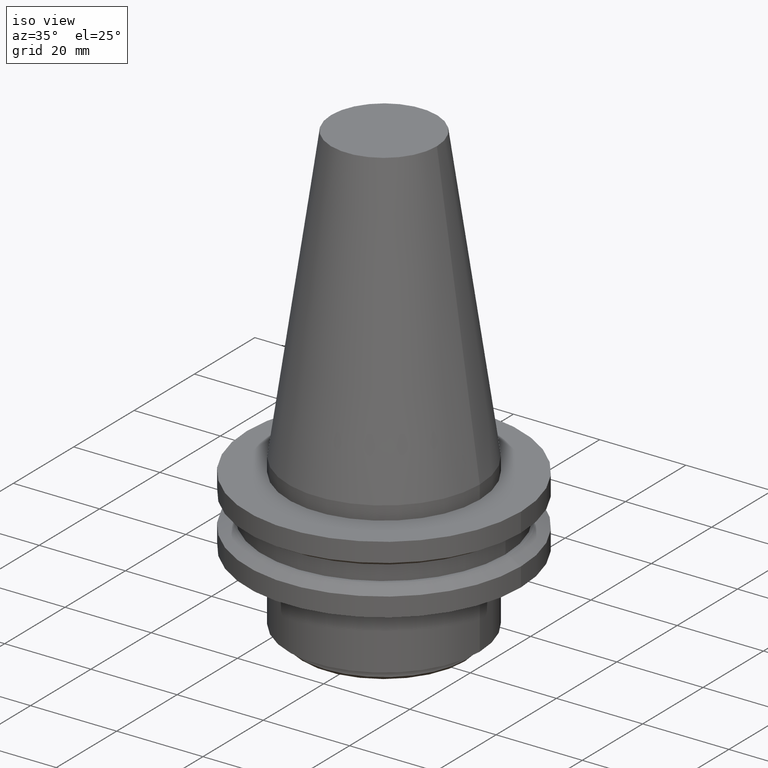
[diagram: clean part render]
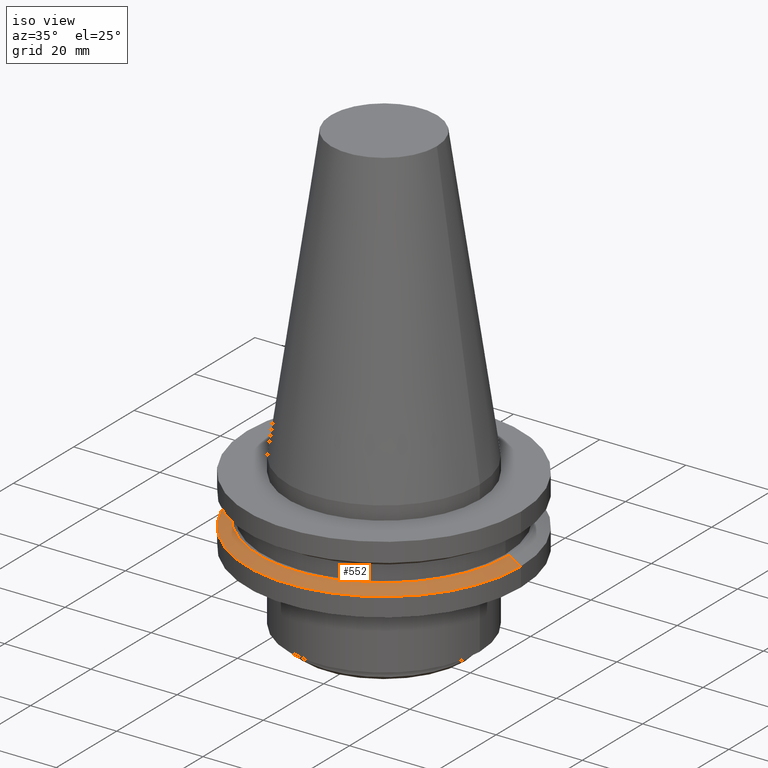
[diagram: same view with one face highlighted and labeled with its STEP entity id]
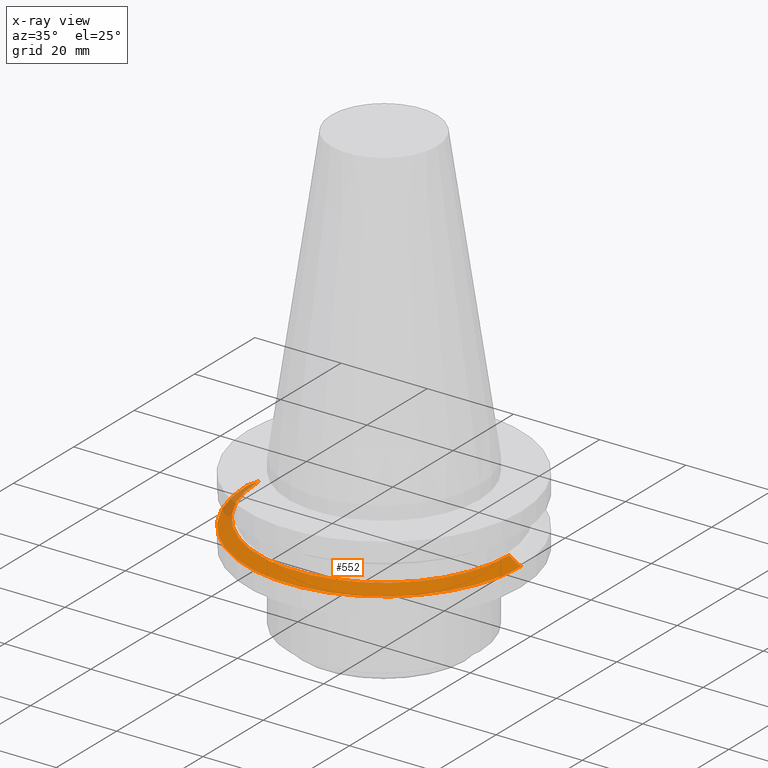
[diagram: x-ray of the same camera — body ghosted, the highlighted face saturated]
A machine part, iso view. The second image highlights one B-rep face of the part: STEP entity #552.
The next image is the same camera in x-ray: the body ghosted, the highlighted face saturated — about 5% of this face is hidden behind the body in this view.
In plain terms, the highlighted conical surface has half-angle 60 deg.
Its self-contained STEP definition (entity closure, byte-faithful):
#60 = CARTESIAN_POINT ( 'NONE',  ( 0.000000000000000000, 0.000000000000000000, -14.65472339340266572 ) ) ;
#77 = EDGE_CURVE ( 'NONE', #220, #650, #473, .T. ) ;
#119 = DIRECTION ( 'NONE',  ( -1.000000000000000000, 0.000000000000000000, 0.000000000000000000 ) ) ;
#135 = ORIENTED_EDGE ( 'NONE', *, *, #710, .F. ) ;
#143 = EDGE_CURVE ( 'NONE', #373, #495, #324, .T. ) ;
#182 = DIRECTION ( 'NONE',  ( 1.000000000000000000, 0.000000000000000000, 0.000000000000000000 ) ) ;
#220 = VERTEX_POINT ( 'NONE', #682 ) ;
#244 = DIRECTION ( 'NONE',  ( -0.000000000000000000, -0.000000000000000000, 1.000000000000000000 ) ) ;
#254 = CARTESIAN_POINT ( 'NONE',  ( 0.000000000000000000, 0.000000000000000000, -14.65472339340266572 ) ) ;
#270 = CARTESIAN_POINT ( 'NONE',  ( 28.97919780457008088, 3.718590885307660666E-15, -13.05499999999999794 ) ) ;
#302 = EDGE_LOOP ( 'NONE', ( #395, #135, #694, #773 ) ) ;
#312 = AXIS2_PLACEMENT_3D ( 'NONE', #820, #244, #182 ) ;
#324 = LINE ( 'NONE', #522, #722 ) ;
#345 = CARTESIAN_POINT ( 'NONE',  ( -31.75000000000000000, 3.888253587292846476E-15, -14.65472339340266572 ) ) ;
#373 = VERTEX_POINT ( 'NONE', #270 ) ;
#395 = ORIENTED_EDGE ( 'NONE', *, *, #143, .F. ) ;
#424 = CARTESIAN_POINT ( 'NONE',  ( -31.75000000000000000, 0.000000000000000000, -14.65472339340266572 ) ) ;
#441 = CARTESIAN_POINT ( 'NONE',  ( 31.75000000000000000, 0.000000000000000000, -14.65472339340266572 ) ) ;
#444 = DIRECTION ( 'NONE',  ( 0.8660254037844387076, 1.060575238724906915E-16, -0.4999999999999998890 ) ) ;
#447 = DIRECTION ( 'NONE',  ( 1.000000000000000000, 0.000000000000000000, 0.000000000000000000 ) ) ;
#448 = AXIS2_PLACEMENT_3D ( 'NONE', #254, #766, #119 ) ;
#473 = LINE ( 'NONE', #424, #554 ) ;
#495 = VERTEX_POINT ( 'NONE', #441 ) ;
#520 = EDGE_CURVE ( 'NONE', #650, #495, #684, .T. ) ;
#522 = CARTESIAN_POINT ( 'NONE',  ( 31.75000000000000000, 3.888253587292846476E-15, -14.65472339340266572 ) ) ;
#552 = ADVANCED_FACE ( 'NONE', ( #690 ), #826, .T. ) ;
#554 = VECTOR ( 'NONE', #555, 1000.000000000000000 ) ;
#555 = DIRECTION ( 'NONE',  ( -0.8660254037844387076, 0.000000000000000000, -0.4999999999999998890 ) ) ;
#578 = AXIS2_PLACEMENT_3D ( 'NONE', #60, #763, #447 ) ;
#650 = VERTEX_POINT ( 'NONE', #345 ) ;
#682 = CARTESIAN_POINT ( 'NONE',  ( -28.97919780457008088, 0.000000000000000000, -13.05499999999999794 ) ) ;
#684 = CIRCLE ( 'NONE', #578, 31.75000000000000000 ) ;
#690 = FACE_OUTER_BOUND ( 'NONE', #302, .T. ) ;
#694 = ORIENTED_EDGE ( 'NONE', *, *, #77, .T. ) ;
#710 = EDGE_CURVE ( 'NONE', #220, #373, #792, .T. ) ;
#722 = VECTOR ( 'NONE', #444, 1000.000000000000000 ) ;
#763 = DIRECTION ( 'NONE',  ( -0.000000000000000000, -0.000000000000000000, 1.000000000000000000 ) ) ;
#766 = DIRECTION ( 'NONE',  ( 0.000000000000000000, 0.000000000000000000, -1.000000000000000000 ) ) ;
#773 = ORIENTED_EDGE ( 'NONE', *, *, #520, .T. ) ;
#792 = CIRCLE ( 'NONE', #312, 28.97919780457008088 ) ;
#820 = CARTESIAN_POINT ( 'NONE',  ( 0.000000000000000000, 0.000000000000000000, -13.05499999999999794 ) ) ;
#826 = CONICAL_SURFACE ( 'NONE', #448, 31.75000000000000000, 1.047197551196597853 ) ;